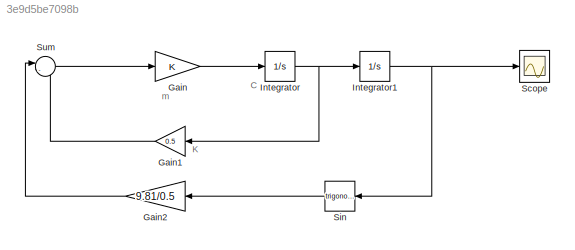
MODEL slx_3e9d5be7098b
KIND model
CONFIG AbsTol = auto
CONFIG EnableMultiTasking = off
CONFIG FixedStep = 0.001
CONFIG MaxStep = auto
CONFIG MinStep = auto
CONFIG RelTol = 1e-3
CONFIG SampleTimeConstraint = Unconstrained
CONFIG SolverName = ode1
CONFIG StartTime = 0.0
CONFIG StopTime = 15
BLOCK [Gain] Gain
BLOCK [Gain] Gain1
  Gain = 0.5
  NameLocation = top
BLOCK [Gain] Gain2
  Gain = 9.81/0.5
  NameLocation = top
BLOCK [Integrator] Integrator
  Ports = [1, 1]
BLOCK [Integrator] Integrator1
  InitialCondition = -pi/2
  Ports = [1, 1]
BLOCK [Scope] Scope
  Floating = off
  NumInputPorts = 1
  Ports = [1]
  ScopeSpecificationString = Simulink.scopes.TimeScopeBlockCfg('CurrentConfiguration', extmgr.ConfigurationSet(extmgr.Configuration('Core','General UI',true),extmgr.Configuration('Core','Source UI',true),extmgr.Configuration('Sources','WiredSimulink',true,'DataLoggingDecimateData',true,'DataLoggingDecimation','100'),extmgr.Configuration('Visuals','Time Domain',true,'SerializedDisplays',{struct('MinYLimReal','-1.10153','MaxYLi...<+1488ch>
BLOCK [Trigonometry] Sin
  Ports = [1, 1]
BLOCK [Sum] Sum
  Inputs = |--
  Ports = [2, 1]
ANNOTATION (root): C
ANNOTATION (root): K
ANNOTATION (root): m
LINE Gain1:1 -> Sum:2
LINE Gain2:1 -> Sum:1
LINE Gain:1 -> Integrator:1
NET Integrator1:1 -> Scope:1, Sin:1
NET Integrator:1 -> Gain1:1, Integrator1:1
LINE Sin:1 -> Gain2:1
LINE Sum:1 -> Gain:1
note: NET lines group one-source signal fan-out (src -> all destinations, sorted); 1:1 wires keep LINE
